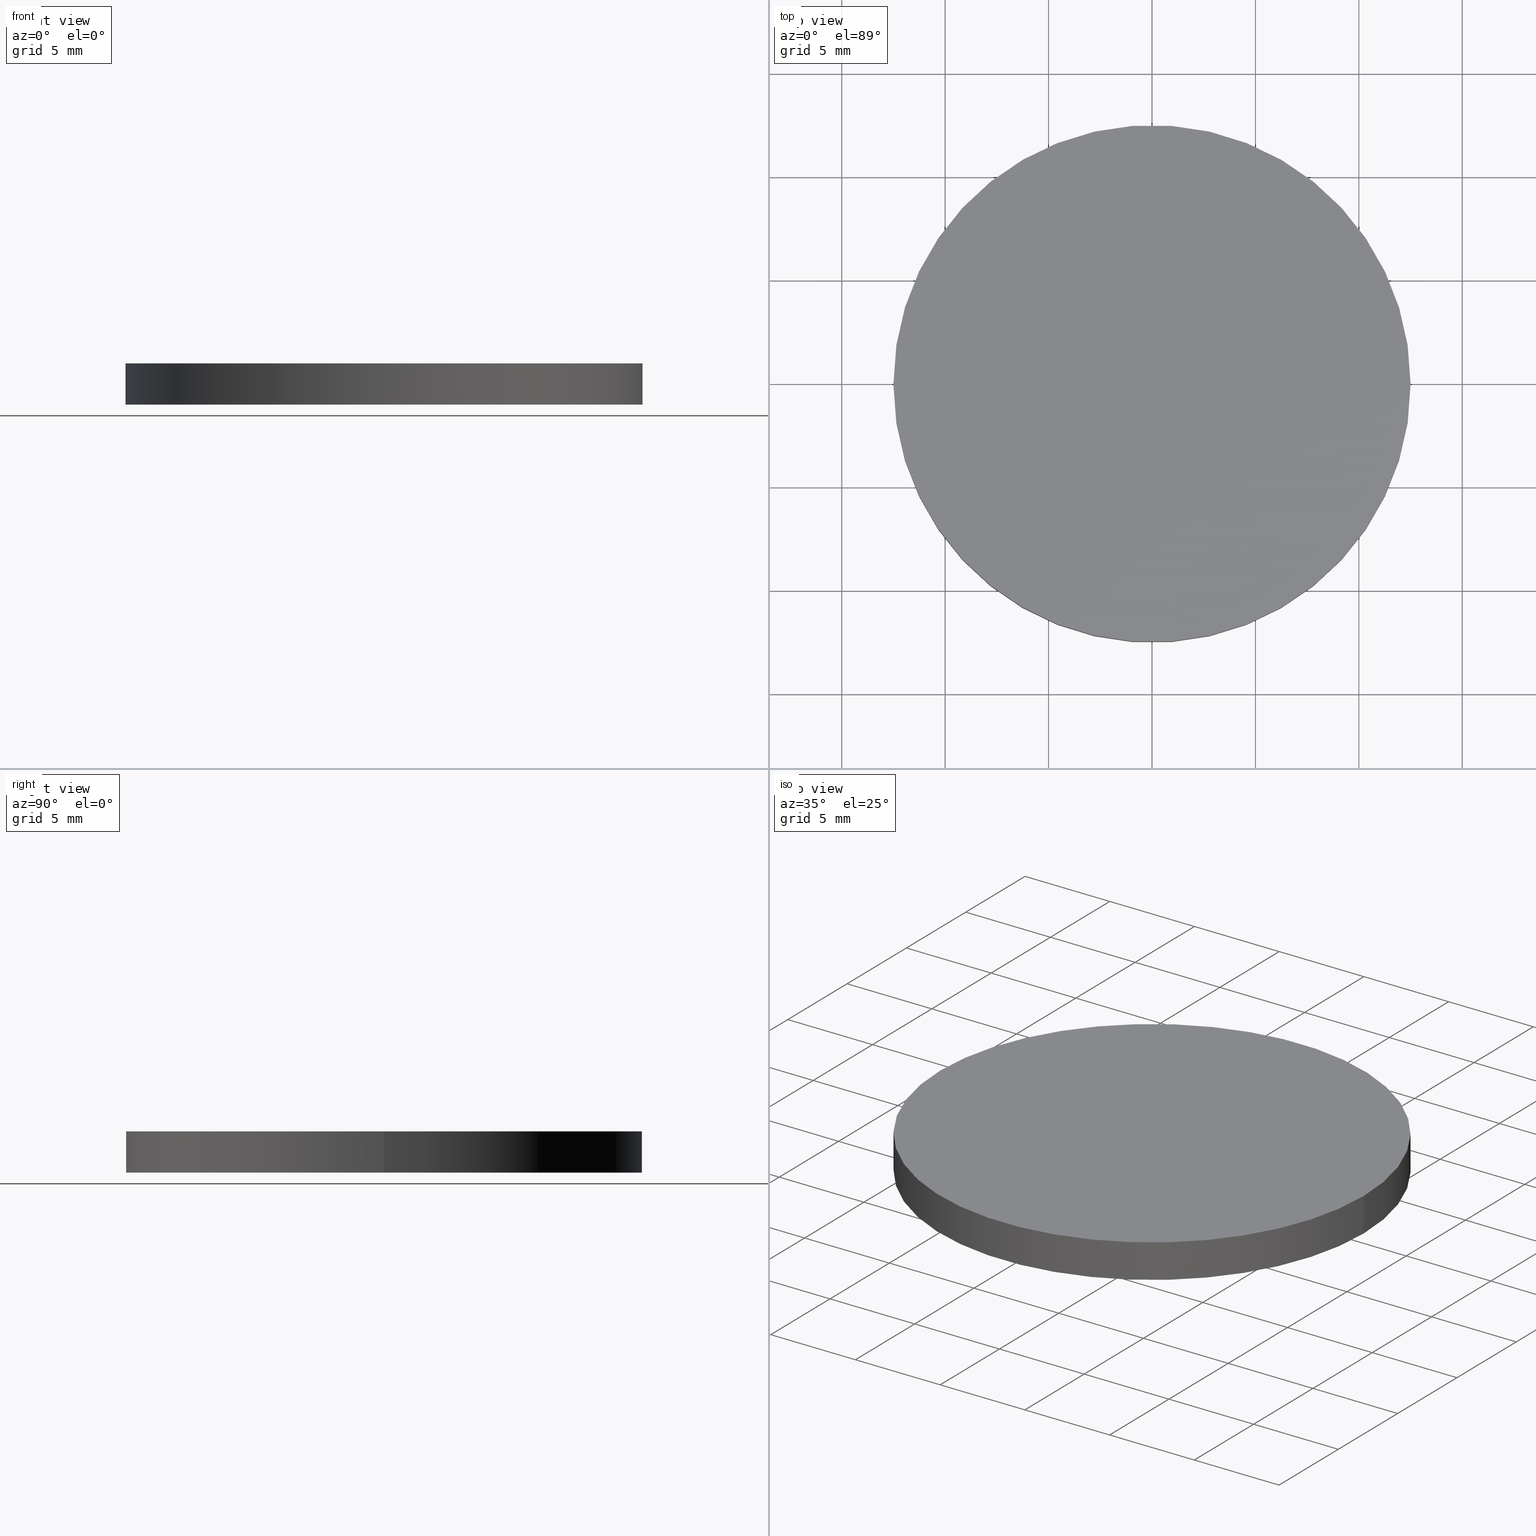
[diagram: canonical four-view strip — front | top / right | iso, engineering-drawing reading convention]
A machine part, canonical four-view strip (front | top / right | iso — engineering-drawing reading convention). The complete STEP part file that produces these views, byte-faithful:
ISO-10303-21;
HEADER;
FILE_DESCRIPTION (( 'STEP AP214' ),
    '1' );
FILE_NAME ('δ��װ.STEP',
    '2020-03-11T05:50:40',
    ( '' ),
    ( '' ),
    'SwSTEP 2.0',
    'SolidWorks 2016',
    '' );
FILE_SCHEMA (( 'AUTOMOTIVE_DESIGN' ));
ENDSEC;

DATA;
#1 = APPLICATION_CONTEXT ( 'automotive_design' ) ;
#2 = EDGE_LOOP ( 'NONE', ( #17, #134 ) ) ;
#3 = FILL_AREA_STYLE ('',( #24 ) ) ;
#4 = PRODUCT_DEFINITION_CONTEXT ( 'detailed design', #1, 'design' ) ;
#5 = MECHANICAL_DESIGN_GEOMETRIC_PRESENTATION_REPRESENTATION (  '', ( #37 ), #11 ) ;
#6 = CARTESIAN_POINT ( 'NONE',  ( 12.50000000000000000, 1.530808498934191500E-015, 0.0000000000000000000 ) ) ;
#7 = DIRECTION ( 'NONE',  ( 0.0000000000000000000, 0.0000000000000000000, 1.000000000000000000 ) ) ;
#8 = VERTEX_POINT ( 'NONE', #6 ) ;
#9 =( GEOMETRIC_REPRESENTATION_CONTEXT ( 3 ) GLOBAL_UNCERTAINTY_ASSIGNED_CONTEXT ( ( #91 ) ) GLOBAL_UNIT_ASSIGNED_CONTEXT ( ( #34, #114, #101 ) ) REPRESENTATION_CONTEXT ( 'NONE', 'WORKASPACE' ) );
#10 = CYLINDRICAL_SURFACE ( 'NONE', #56, 12.50000000000000000 ) ;
#11 =( GEOMETRIC_REPRESENTATION_CONTEXT ( 3 ) GLOBAL_UNCERTAINTY_ASSIGNED_CONTEXT ( ( #63 ) ) GLOBAL_UNIT_ASSIGNED_CONTEXT ( ( #100, #87, #67 ) ) REPRESENTATION_CONTEXT ( 'NONE', 'WORKASPACE' ) );
#12 = SURFACE_STYLE_USAGE ( .BOTH. , #58 ) ;
#13 = DIRECTION ( 'NONE',  ( 0.0000000000000000000, 0.0000000000000000000, 1.000000000000000000 ) ) ;
#14 = AXIS2_PLACEMENT_3D ( 'NONE', #107, #66, #140 ) ;
#15 = DIRECTION ( 'NONE',  ( 0.0000000000000000000, 0.0000000000000000000, 1.000000000000000000 ) ) ;
#16 = DIRECTION ( 'NONE',  ( 1.000000000000000000, 0.0000000000000000000, -0.0000000000000000000 ) ) ;
#17 = ORIENTED_EDGE ( 'NONE', *, *, #137, .T. ) ;
#18 = APPLICATION_PROTOCOL_DEFINITION ( 'draft international standard', 'automotive_design', 1998, #1 ) ;
#19 = LINE ( 'NONE', #48, #103 ) ;
#20 = EDGE_CURVE ( 'NONE', #21, #8, #19, .T. ) ;
#21 = VERTEX_POINT ( 'NONE', #38 ) ;
#22 = ORIENTED_EDGE ( 'NONE', *, *, #96, .T. ) ;
#23 = SURFACE_SIDE_STYLE ('',( #64 ) ) ;
#24 = FILL_AREA_STYLE_COLOUR ( '', #70 ) ;
#25 = ORIENTED_EDGE ( 'NONE', *, *, #20, .F. ) ;
#26 = DIRECTION ( 'NONE',  ( 0.0000000000000000000, 0.0000000000000000000, 1.000000000000000000 ) ) ;
#27 =( NAMED_UNIT ( * ) PLANE_ANGLE_UNIT ( ) SI_UNIT ( $, .RADIAN. ) );
#28 = CARTESIAN_POINT ( 'NONE',  ( -12.50000000000000000, 0.0000000000000000000, 2.000000000000000000 ) ) ;
#29 = LINE ( 'NONE', #28, #116 ) ;
#30 = ORIENTED_EDGE ( 'NONE', *, *, #96, .F. ) ;
#31 = PRODUCT_DEFINITION ( 'δ֪', '', #61, #4 ) ;
#32 = DIRECTION ( 'NONE',  ( -1.000000000000000000, 0.0000000000000000000, 0.0000000000000000000 ) ) ;
#33 = FACE_OUTER_BOUND ( 'NONE', #132, .T. ) ;
#34 =( LENGTH_UNIT ( ) NAMED_UNIT ( * ) SI_UNIT ( .MILLI., .METRE. ) );
#35 = ORIENTED_EDGE ( 'NONE', *, *, #86, .F. ) ;
#36 = DIRECTION ( 'NONE',  ( 1.000000000000000000, 0.0000000000000000000, 0.0000000000000000000 ) ) ;
#37 = STYLED_ITEM ( 'NONE', ( #78 ), #118 ) ;
#38 = CARTESIAN_POINT ( 'NONE',  ( 12.50000000000000000, 1.530808498934191500E-015, 2.000000000000000000 ) ) ;
#39 = EDGE_CURVE ( 'NONE', #21, #74, #127, .T. ) ;
#40 = CYLINDRICAL_SURFACE ( 'NONE', #102, 12.50000000000000000 ) ;
#41 = PRESENTATION_LAYER_ASSIGNMENT (  '', '', ( #37 ) ) ;
#42 = ORIENTED_EDGE ( 'NONE', *, *, #20, .T. ) ;
#43 = DIRECTION ( 'NONE',  ( 0.0000000000000000000, 0.0000000000000000000, 1.000000000000000000 ) ) ;
#44 = FILL_AREA_STYLE ('',( #124 ) ) ;
#45 = SURFACE_STYLE_USAGE ( .BOTH. , #23 ) ;
#46 = DIRECTION ( 'NONE',  ( 1.000000000000000000, 0.0000000000000000000, 0.0000000000000000000 ) ) ;
#47 = EDGE_CURVE ( 'NONE', #74, #119, #29, .T. ) ;
#48 = CARTESIAN_POINT ( 'NONE',  ( 12.50000000000000000, 1.530808498934191500E-015, 2.000000000000000000 ) ) ;
#49 = FACE_OUTER_BOUND ( 'NONE', #2, .T. ) ;
#50 = ORIENTED_EDGE ( 'NONE', *, *, #137, .F. ) ;
#51 = AXIS2_PLACEMENT_3D ( 'NONE', #54, #26, #46 ) ;
#52 = STYLED_ITEM ( 'NONE', ( #94 ), #117 ) ;
#53 = COLOUR_RGB ( '',1.000000000000000000, 1.000000000000000000, 1.000000000000000000 ) ;
#54 = CARTESIAN_POINT ( 'NONE',  ( 0.0000000000000000000, 0.0000000000000000000, 2.000000000000000000 ) ) ;
#55 = PLANE ( 'NONE',  #123 ) ;
#56 = AXIS2_PLACEMENT_3D ( 'NONE', #77, #105, #32 ) ;
#57 = APPLICATION_PROTOCOL_DEFINITION ( 'draft international standard', 'automotive_design', 1998, #112 ) ;
#58 = SURFACE_SIDE_STYLE ('',( #108 ) ) ;
#59 = PLANE ( 'NONE',  #14 ) ;
#60 = ORIENTED_EDGE ( 'NONE', *, *, #39, .F. ) ;
#61 = PRODUCT_DEFINITION_FORMATION_WITH_SPECIFIED_SOURCE ( '�κ�', '', #125, .NOT_KNOWN. ) ;
#62 = ADVANCED_FACE ( 'NONE', ( #104 ), #59, .F. ) ;
#63 = UNCERTAINTY_MEASURE_WITH_UNIT (LENGTH_MEASURE( 1.000000000000000100E-005 ), #100, 'distance_accuracy_value', 'NONE');
#64 = SURFACE_STYLE_FILL_AREA ( #3 ) ;
#65 = DIRECTION ( 'NONE',  ( 1.000000000000000000, 0.0000000000000000000, 0.0000000000000000000 ) ) ;
#66 = DIRECTION ( 'NONE',  ( 0.0000000000000000000, 0.0000000000000000000, 1.000000000000000000 ) ) ;
#67 =( NAMED_UNIT ( * ) SI_UNIT ( $, .STERADIAN. ) SOLID_ANGLE_UNIT ( ) );
#68 = AXIS2_PLACEMENT_3D ( 'NONE', #69, #7, #83 ) ;
#69 = CARTESIAN_POINT ( 'NONE',  ( 0.0000000000000000000, 0.0000000000000000000, 2.000000000000000000 ) ) ;
#70 = COLOUR_RGB ( '',1.000000000000000000, 1.000000000000000000, 1.000000000000000000 ) ;
#71 = AXIS2_PLACEMENT_3D ( 'NONE', #76, #111, #121 ) ;
#72 = ORIENTED_EDGE ( 'NONE', *, *, #47, .T. ) ;
#73 = UNCERTAINTY_MEASURE_WITH_UNIT (LENGTH_MEASURE( 1.000000000000000100E-005 ), #122, 'distance_accuracy_value', 'NONE');
#74 = VERTEX_POINT ( 'NONE', #82 ) ;
#75 = AXIS2_PLACEMENT_3D ( 'NONE', #92, #15, #65 ) ;
#76 = CARTESIAN_POINT ( 'NONE',  ( 0.0000000000000000000, 0.0000000000000000000, 0.0000000000000000000 ) ) ;
#77 = CARTESIAN_POINT ( 'NONE',  ( 0.0000000000000000000, 0.0000000000000000000, 2.000000000000000000 ) ) ;
#78 = PRESENTATION_STYLE_ASSIGNMENT (( #12 ) ) ;
#79 = CARTESIAN_POINT ( 'NONE',  ( 0.0000000000000000000, 0.0000000000000000000, 0.0000000000000000000 ) ) ;
#80 =( NAMED_UNIT ( * ) SI_UNIT ( $, .STERADIAN. ) SOLID_ANGLE_UNIT ( ) );
#81 = AXIS2_PLACEMENT_3D ( 'NONE', #79, #43, #36 ) ;
#82 = CARTESIAN_POINT ( 'NONE',  ( -12.50000000000000000, 0.0000000000000000000, 2.000000000000000000 ) ) ;
#83 = DIRECTION ( 'NONE',  ( 1.000000000000000000, 0.0000000000000000000, 0.0000000000000000000 ) ) ;
#84 = CIRCLE ( 'NONE', #75, 12.50000000000000000 ) ;
#85 = CLOSED_SHELL ( 'NONE', ( #138, #109, #129, #62 ) ) ;
#86 = EDGE_CURVE ( 'NONE', #119, #8, #115, .T. ) ;
#87 =( NAMED_UNIT ( * ) PLANE_ANGLE_UNIT ( ) SI_UNIT ( $, .RADIAN. ) );
#88 = ORIENTED_EDGE ( 'NONE', *, *, #47, .F. ) ;
#89 = CARTESIAN_POINT ( 'NONE',  ( 0.0000000000000000000, 0.0000000000000000000, 2.000000000000000000 ) ) ;
#90 = CARTESIAN_POINT ( 'NONE',  ( -12.50000000000000000, 0.0000000000000000000, 0.0000000000000000000 ) ) ;
#91 = UNCERTAINTY_MEASURE_WITH_UNIT (LENGTH_MEASURE( 1.000000000000000100E-005 ), #34, 'distance_accuracy_value', 'NONE');
#92 = CARTESIAN_POINT ( 'NONE',  ( 0.0000000000000000000, 0.0000000000000000000, 0.0000000000000000000 ) ) ;
#93 = DIRECTION ( 'NONE',  ( -0.0000000000000000000, -0.0000000000000000000, -1.000000000000000000 ) ) ;
#94 = PRESENTATION_STYLE_ASSIGNMENT (( #45 ) ) ;
#95 = EDGE_LOOP ( 'NONE', ( #35, #30 ) ) ;
#96 = EDGE_CURVE ( 'NONE', #8, #119, #84, .T. ) ;
#97 = PRODUCT_DEFINITION_SHAPE ( 'NONE', 'NONE',  #31 ) ;
#98 = PRODUCT_RELATED_PRODUCT_CATEGORY ( 'part', '', ( #125 ) ) ;
#99 = DIRECTION ( 'NONE',  ( -1.000000000000000000, 0.0000000000000000000, 0.0000000000000000000 ) ) ;
#100 =( LENGTH_UNIT ( ) NAMED_UNIT ( * ) SI_UNIT ( .MILLI., .METRE. ) );
#101 =( NAMED_UNIT ( * ) SI_UNIT ( $, .STERADIAN. ) SOLID_ANGLE_UNIT ( ) );
#102 = AXIS2_PLACEMENT_3D ( 'NONE', #89, #113, #99 ) ;
#103 = VECTOR ( 'NONE', #106, 1000.000000000000000 ) ;
#104 = FACE_OUTER_BOUND ( 'NONE', #95, .T. ) ;
#105 = DIRECTION ( 'NONE',  ( -0.0000000000000000000, -0.0000000000000000000, -1.000000000000000000 ) ) ;
#106 = DIRECTION ( 'NONE',  ( -0.0000000000000000000, -0.0000000000000000000, -1.000000000000000000 ) ) ;
#107 = CARTESIAN_POINT ( 'NONE',  ( 0.0000000000000000000, 0.0000000000000000000, 0.0000000000000000000 ) ) ;
#108 = SURFACE_STYLE_FILL_AREA ( #44 ) ;
#109 = ADVANCED_FACE ( 'NONE', ( #128 ), #40, .T. ) ;
#110 = PRESENTATION_LAYER_ASSIGNMENT (  '', '', ( #52 ) ) ;
#111 = DIRECTION ( 'NONE',  ( 0.0000000000000000000, 0.0000000000000000000, 1.000000000000000000 ) ) ;
#112 = APPLICATION_CONTEXT ( 'automotive_design' ) ;
#113 = DIRECTION ( 'NONE',  ( -0.0000000000000000000, -0.0000000000000000000, -1.000000000000000000 ) ) ;
#114 =( NAMED_UNIT ( * ) PLANE_ANGLE_UNIT ( ) SI_UNIT ( $, .RADIAN. ) );
#115 = CIRCLE ( 'NONE', #81, 12.50000000000000000 ) ;
#116 = VECTOR ( 'NONE', #93, 1000.000000000000000 ) ;
#117 = MANIFOLD_SOLID_BREP ( '͹̨-����1', #85 ) ;
#118 = ADVANCED_BREP_SHAPE_REPRESENTATION ( 'δ��װ', ( #117, #71 ), #135 ) ;
#119 = VERTEX_POINT ( 'NONE', #90 ) ;
#120 = CIRCLE ( 'NONE', #51, 12.50000000000000000 ) ;
#121 = DIRECTION ( 'NONE',  ( 1.000000000000000000, 0.0000000000000000000, 0.0000000000000000000 ) ) ;
#122 =( LENGTH_UNIT ( ) NAMED_UNIT ( * ) SI_UNIT ( .MILLI., .METRE. ) );
#123 = AXIS2_PLACEMENT_3D ( 'NONE', #133, #13, #16 ) ;
#124 = FILL_AREA_STYLE_COLOUR ( '', #53 ) ;
#125 = PRODUCT ( 'δ��װ', 'δ��װ', '', ( #131 ) ) ;
#126 = SHAPE_DEFINITION_REPRESENTATION ( #97, #118 ) ;
#127 = CIRCLE ( 'NONE', #68, 12.50000000000000000 ) ;
#128 = FACE_OUTER_BOUND ( 'NONE', #136, .T. ) ;
#129 = ADVANCED_FACE ( 'NONE', ( #49 ), #55, .T. ) ;
#130 = MECHANICAL_DESIGN_GEOMETRIC_PRESENTATION_REPRESENTATION (  '', ( #52 ), #9 ) ;
#131 = PRODUCT_CONTEXT ( 'NONE', #112, 'mechanical' ) ;
#132 = EDGE_LOOP ( 'NONE', ( #60, #42, #22, #88 ) ) ;
#133 = CARTESIAN_POINT ( 'NONE',  ( 0.0000000000000000000, 0.0000000000000000000, 2.000000000000000000 ) ) ;
#134 = ORIENTED_EDGE ( 'NONE', *, *, #39, .T. ) ;
#135 =( GEOMETRIC_REPRESENTATION_CONTEXT ( 3 ) GLOBAL_UNCERTAINTY_ASSIGNED_CONTEXT ( ( #73 ) ) GLOBAL_UNIT_ASSIGNED_CONTEXT ( ( #122, #27, #80 ) ) REPRESENTATION_CONTEXT ( 'NONE', 'WORKASPACE' ) );
#136 = EDGE_LOOP ( 'NONE', ( #25, #50, #72, #139 ) ) ;
#137 = EDGE_CURVE ( 'NONE', #74, #21, #120, .T. ) ;
#138 = ADVANCED_FACE ( 'NONE', ( #33 ), #10, .T. ) ;
#139 = ORIENTED_EDGE ( 'NONE', *, *, #86, .T. ) ;
#140 = DIRECTION ( 'NONE',  ( 1.000000000000000000, 0.0000000000000000000, -0.0000000000000000000 ) ) ;
ENDSEC;
END-ISO-10303-21;
